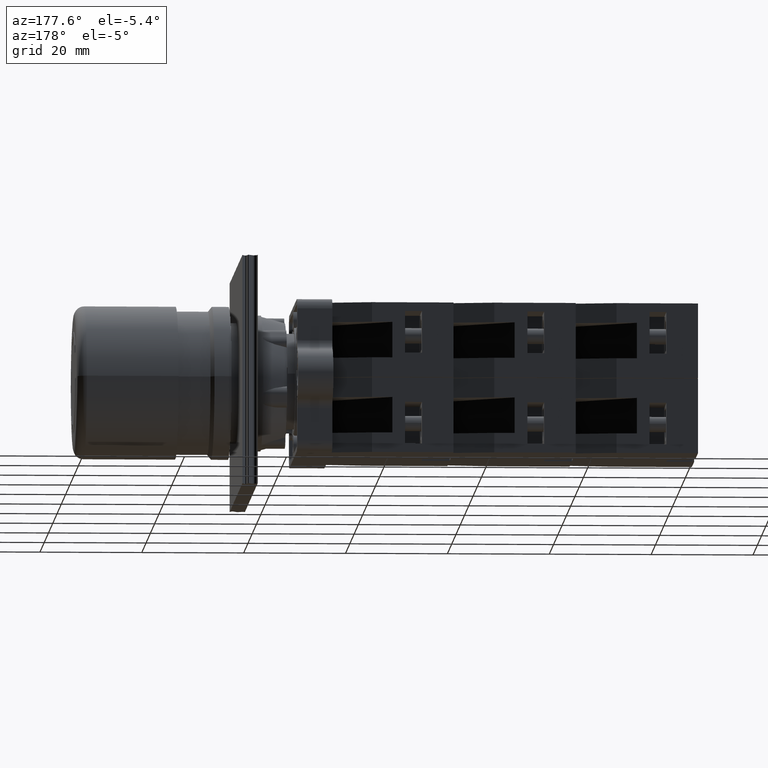
[diagram: clean part render]
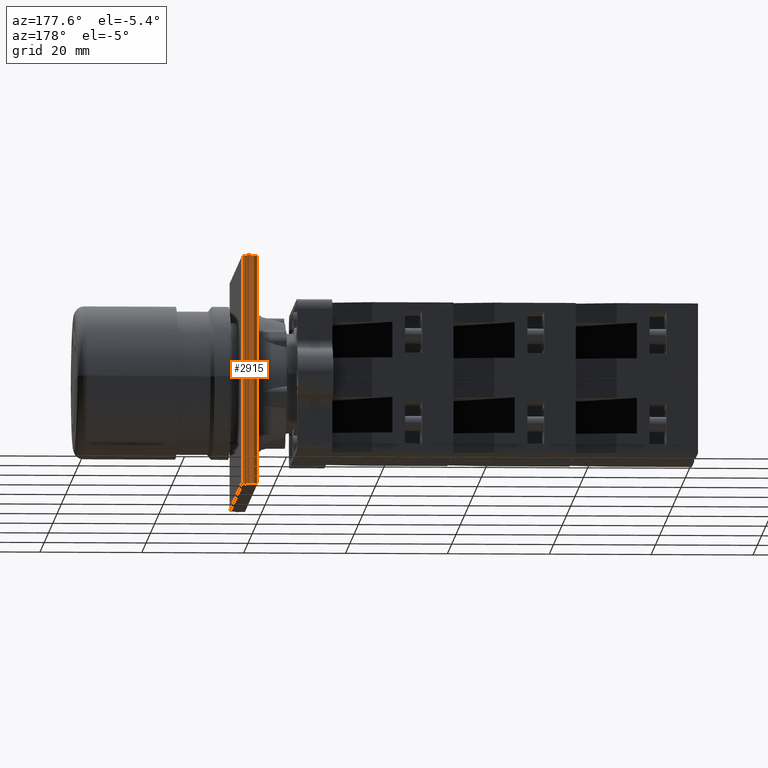
[diagram: same view with one face highlighted and labeled with its STEP entity id]
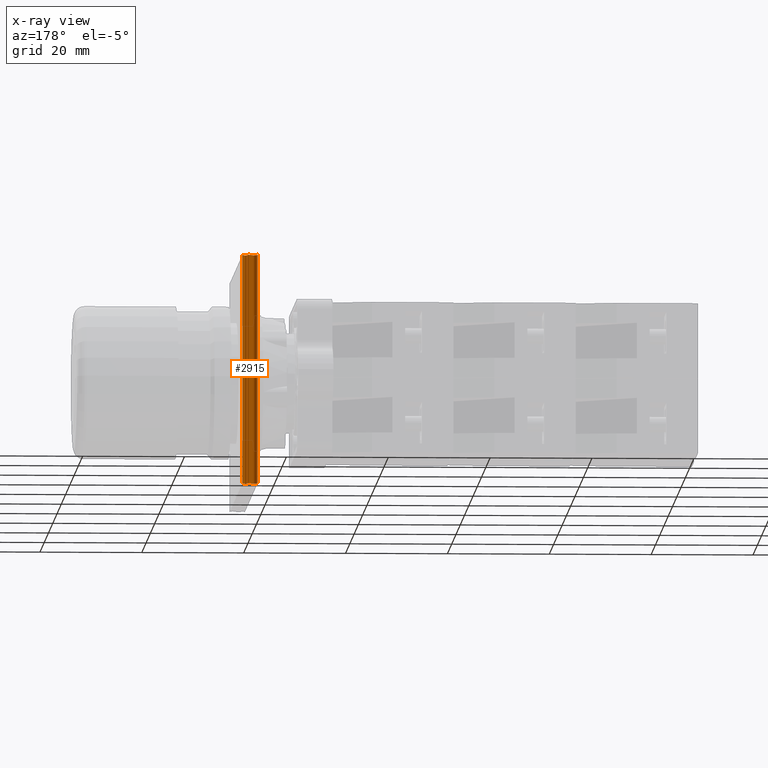
[diagram: x-ray of the same camera — body ghosted, the highlighted face saturated]
A machine part, auxiliary view. The second image highlights one B-rep face of the part: STEP entity #2915.
The next image is the same camera in x-ray: the body ghosted, the highlighted face saturated — about 0% of this face is hidden behind the body in this view.
In plain terms, the highlighted face is a freeform B-spline surface patch.
Its self-contained STEP definition (entity closure, byte-faithful):
#2846=CARTESIAN_POINT('',(-12.704183619849172,-62.725398273954283,45.0));
#2847=VERTEX_POINT('',#2846);
#2854=CARTESIAN_POINT('',(-12.704183619849172,-62.725398273954283,0.0));
#2855=VERTEX_POINT('',#2854);
#2856=CARTESIAN_POINT('',(-12.704183619849172,-62.725398273954283,0.0));
#2857=DIRECTION('',(0.0,0.0,1.0));
#2858=VECTOR('',#2857,45.0);
#2859=LINE('',#2856,#2858);
#2860=EDGE_CURVE('',#2855,#2847,#2859,.T.);
#2875=CARTESIAN_POINT('',(-15.704183619849182,-62.725398273954283,0.0));
#2876=CARTESIAN_POINT('',(-14.283734517597093,-58.710287807173117,0.0));
#2877=CARTESIAN_POINT('',(-13.047229203726467,-69.825373706267470,0.0));
#2878=CARTESIAN_POINT('',(-14.371498841514271,-57.028426828334801,0.0));
#2879=CARTESIAN_POINT('',(-12.704183619849177,-62.725398273954298,0.0));
#2880=CARTESIAN_POINT('',(-15.704183619849182,-62.725398273954283,45.0));
#2881=CARTESIAN_POINT('',(-14.283734517597093,-58.710287807173117,45.0));
#2882=CARTESIAN_POINT('',(-13.047229203726467,-69.825373706267470,45.0));
#2883=CARTESIAN_POINT('',(-14.371498841514271,-57.028426828334801,45.0));
#2884=CARTESIAN_POINT('',(-12.704183619849177,-62.725398273954298,45.0));
#2885=B_SPLINE_SURFACE_WITH_KNOTS('',4,1,((#2875,#2880),(#2876,#2881),(#2877,#2882),(#2878,#2883),(#2879,#2884)),.UNSPECIFIED.,.F.,.F.,.U.,(5,5),(2,2),(0.0,1.0),(0.0,4.500000000000000),.UNSPECIFIED.);
#2886=CARTESIAN_POINT('',(-15.704183619849179,-62.725398273954283,45.0));
#2887=VERTEX_POINT('',#2886);
#2888=CARTESIAN_POINT('',(-12.704183619849177,-62.725398273954298,45.0));
#2889=CARTESIAN_POINT('',(-14.371498841514271,-57.028426828334801,45.0));
#2890=CARTESIAN_POINT('',(-13.047229203726467,-69.825373706267470,45.0));
#2891=CARTESIAN_POINT('',(-14.283734517597093,-58.710287807173117,45.0));
#2892=CARTESIAN_POINT('',(-15.704183619849182,-62.725398273954283,45.0));
#2893=QUASI_UNIFORM_CURVE('',4,(#2888,#2889,#2890,#2891,#2892),.UNSPECIFIED.,.F.,.U.);
#2894=EDGE_CURVE('',#2847,#2887,#2893,.T.);
#2895=ORIENTED_EDGE('',*,*,#2894,.T.);
#2896=CARTESIAN_POINT('',(-15.704183619849179,-62.725398273954283,0.0));
#2897=VERTEX_POINT('',#2896);
#2898=CARTESIAN_POINT('',(-15.704183619849179,-62.725398273954283,0.0));
#2899=DIRECTION('',(0.0,0.0,1.0));
#2900=VECTOR('',#2899,45.0);
#2901=LINE('',#2898,#2900);
#2902=EDGE_CURVE('',#2897,#2887,#2901,.T.);
#2903=ORIENTED_EDGE('',*,*,#2902,.F.);
#2904=CARTESIAN_POINT('',(-15.704183619849182,-62.725398273954283,0.0));
#2905=CARTESIAN_POINT('',(-14.283734517597093,-58.710287807173117,0.0));
#2906=CARTESIAN_POINT('',(-13.047229203726467,-69.825373706267470,0.0));
#2907=CARTESIAN_POINT('',(-14.371498841514271,-57.028426828334801,0.0));
#2908=CARTESIAN_POINT('',(-12.704183619849177,-62.725398273954298,0.0));
#2909=QUASI_UNIFORM_CURVE('',4,(#2904,#2905,#2906,#2907,#2908),.UNSPECIFIED.,.F.,.U.);
#2910=EDGE_CURVE('',#2897,#2855,#2909,.T.);
#2911=ORIENTED_EDGE('',*,*,#2910,.T.);
#2912=ORIENTED_EDGE('',*,*,#2860,.T.);
#2913=EDGE_LOOP('',(#2895,#2903,#2911,#2912));
#2914=FACE_OUTER_BOUND('',#2913,.T.);
#2915=ADVANCED_FACE('',(#2914),#2885,.T.);